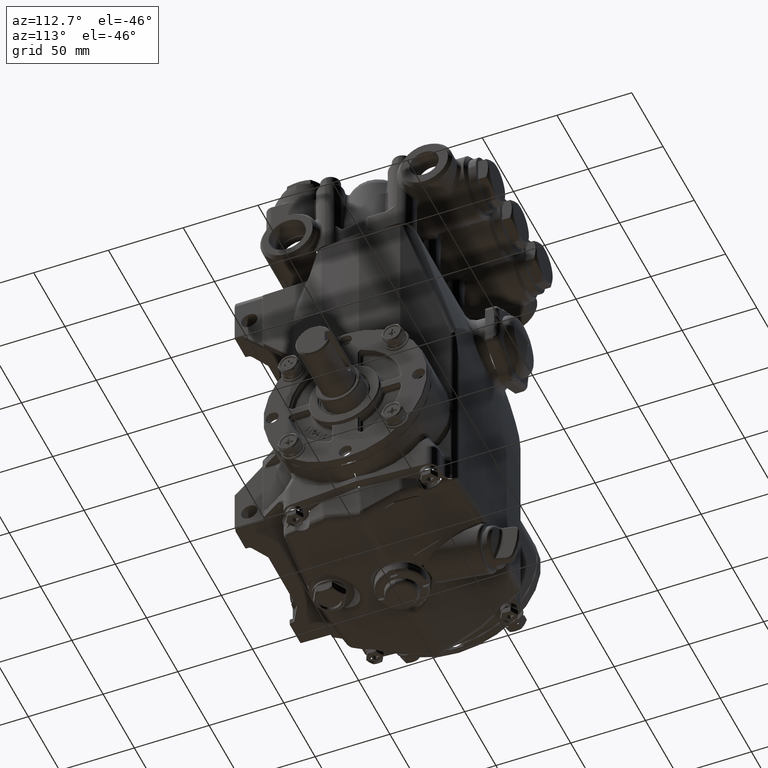
[diagram: clean part render]
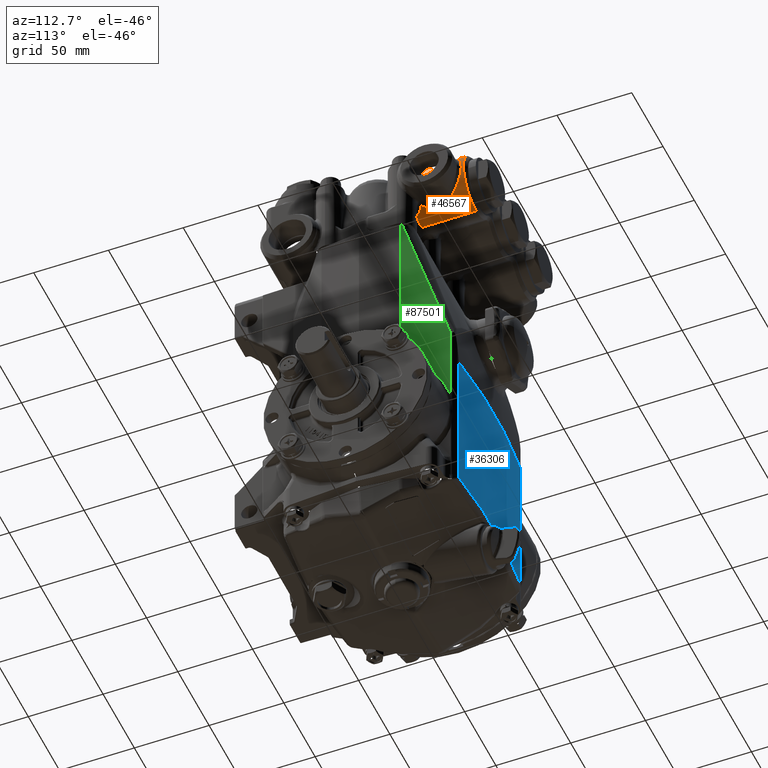
[diagram: same view with three faces highlighted in distinct colors, each labeled with its STEP entity id]
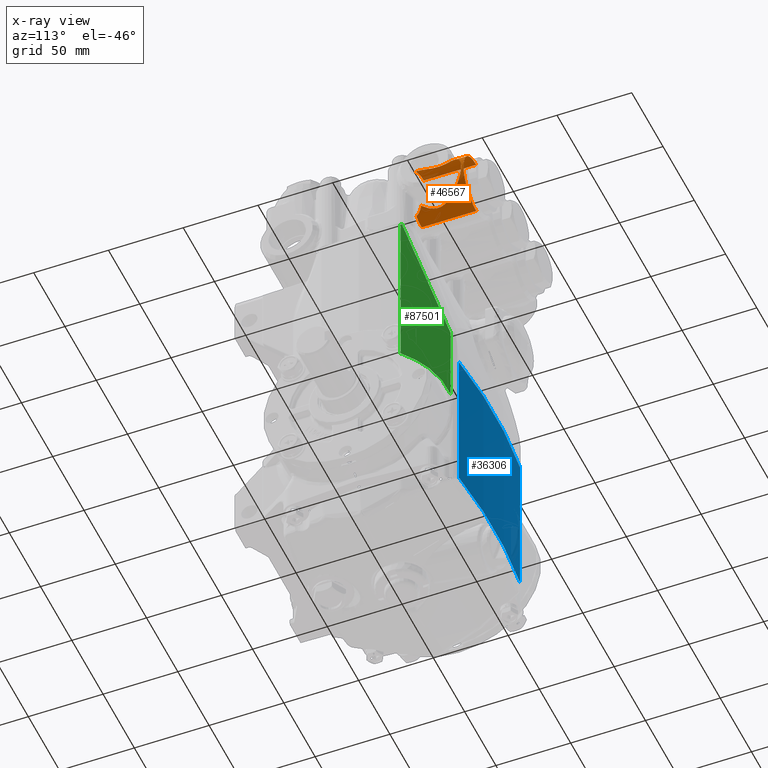
[diagram: x-ray of the same camera — body ghosted, the three highlighted faces saturated]
A machine part, auxiliary view with three faces highlighted in distinct colors.
The next image is the same camera in x-ray (body ghosted, the three faces saturated) — at least one of them is partly hidden behind the body in this view.
Their STEP definitions:

[orange] entity #46567 — the highlighted cylindrical surface (edge-blend (fillet) strip) has radius 20.5 mm, axis along (0, 1, 0).
#430 = LINE ( 'NONE', #87080, #75181 ) ;
#562 = CARTESIAN_POINT ( 'NONE',  ( 1.887898155012650347, 1.875544300023719302, 8.933965430358696835 ) ) ;
#1161 = CARTESIAN_POINT ( 'NONE',  ( 1.978013763466342390, 1.392126297157340264, 8.876062346090446198 ) ) ;
#1795 = CARTESIAN_POINT ( 'NONE',  ( 1.867103497171284765, 1.693745785696658679, 8.945092271815292762 ) ) ;
#1968 = ORIENTED_EDGE ( 'NONE', *, *, #84944, .F. ) ;
#4184 = AXIS2_PLACEMENT_3D ( 'NONE', #39419, #28815, #21886 ) ;
#5304 = B_SPLINE_CURVE_WITH_KNOTS ( 'NONE', 3,
 ( #44717, #71149, #73011, #34064, #15852, #27565, #33424, #111280, #72385, #23389, #110673, #25274, #109421, #63593, #61707, #65908, #54163, #6415, #36991, #83063, #104206, #94788, #8721, #20027, #30056, #67160, #59565, #20646, #96630, #50140, #58334, #10565, #38810, #86598, #37576, #77178, #30674, #76566, #88468, #57704, #115427, #69006, #106051, #19387, #116676, #75943, #114191, #11817, #39417, #104825, #29415, #78416, #67757, #58962, #114815, #124219, #68390, #97866, #38188, #28197, #57089, #107294, #66544, #562, #21252, #96016, #18788, #95395, #28813, #9948, #1795, #47631, #97262, #9328, #105427, #85982, #48889, #48250, #87220, #1161, #77780, #116053, #106682, #11191 ),
 .UNSPECIFIED., .F., .F.,
 ( 4, 2, 2, 2, 2, 2, 2, 2, 2, 2, 2, 2, 2, 2, 2, 2, 2, 2, 2, 2, 2, 2, 2, 2, 2, 2, 2, 2, 2, 2, 2, 2, 2, 2, 2, 2, 2, 2, 2, 2, 2, 4 ),
 ( 0.000000000000000000, 0.002834793119117585535, 0.005669586238235171070, 0.008504379357352756172, 0.009921775916911552626, 0.01133917247647034734, 0.01417396559558793852, 0.01700875871470552969, 0.01842615527426430533, 0.01984355183382308443, 0.02267834495294065306, 0.02551313807205822515, 0.02834793119117579724, 0.03118272431029336586, 0.03401751742941093448, 0.03685231054852850657, 0.03968710366764607866, 0.04110450022720486124, 0.04252189678676364382, 0.04535668990588129917, 0.04677408646544016502, 0.04819148302499902392, 0.05102627614411676255, 0.05244367270367562839, 0.05386106926323448729, 0.05669586238235229531, 0.05953065550147009638, 0.06236544862058791133, 0.06520024173970571935, 0.06803503485882352042, 0.07086982797794132150, 0.07228722453750023591, 0.07370462109705913645, 0.07512201765661805086, 0.07653941421617693752, 0.07795681077573585194, 0.07937420733529475247, 0.08220900045441258130, 0.08362639701397149572, 0.08504379357353042401, 0.08787858669264826672, 0.09071337981176612331 ),
 .UNSPECIFIED. ) ;
#5713 = VERTEX_POINT ( 'NONE', #34797 ) ;
#6415 = CARTESIAN_POINT ( 'NONE',  ( 1.946580572287869737, 2.015109620018512349, 7.558634748197056830 ) ) ;
#7308 = CARTESIAN_POINT ( 'NONE',  ( 1.496062992125984259, 2.578740157480315265, 8.228346456692914757 ) ) ;
#8721 = CARTESIAN_POINT ( 'NONE',  ( 2.052625948890020258, 2.189172874905088495, 7.643279274628634212 ) ) ;
#9114 = CARTESIAN_POINT ( 'NONE',  ( 2.068500768795727751, 1.252643318163350061, 8.797296186123384487 ) ) ;
#9328 = CARTESIAN_POINT ( 'NONE',  ( 1.888062600508001676, 1.585300529257277047, 8.933910416311128699 ) ) ;
#9948 = CARTESIAN_POINT ( 'NONE',  ( 1.865887343444566859, 1.712083311249620321, 8.945715789192282941 ) ) ;
#10565 = CARTESIAN_POINT ( 'NONE',  ( 2.271188948071915181, 2.480032685148207960, 8.000890287102285114 ) ) ;
#11191 = CARTESIAN_POINT ( 'NONE',  ( 2.068500768795727751, 1.252643318163350061, 8.797296186123384487 ) ) ;
#11630 = CARTESIAN_POINT ( 'NONE',  ( 1.496062992125984259, 1.141732283464567121, 7.421259842519686067 ) ) ;
#11658 = DIRECTION ( 'NONE',  ( 0.000000000000000000, 1.000000000000000000, 1.226136909130372365E-16 ) ) ;
#11817 = CARTESIAN_POINT ( 'NONE',  ( 2.232360391256039023, 2.431143250863842198, 8.559298208494208637 ) ) ;
#11991 = CARTESIAN_POINT ( 'NONE',  ( 1.496062992125984259, 2.578740157480315265, 9.035433070866144334 ) ) ;
#12695 = DIRECTION ( 'NONE',  ( 1.734723475976806848E-16, -1.000000000000000000, 0.000000000000000000 ) ) ;
#15207 = AXIS2_PLACEMENT_3D ( 'NONE', #115899, #11658, #89544 ) ;
#15852 = CARTESIAN_POINT ( 'NONE',  ( 1.925763334180687458, 1.490170108105921321, 7.544965645808301424 ) ) ;
#16687 = CARTESIAN_POINT ( 'NONE',  ( 2.042721650677164824, 1.236876626930506040, 8.822356714430453550 ) ) ;
#17821 = EDGE_CURVE ( 'NONE', #26839, #89893, #45031, .T. ) ;
#18144 = CARTESIAN_POINT ( 'NONE',  ( 1.496062992125984259, 2.578740157480315265, 7.421259842519685179 ) ) ;
#18788 = CARTESIAN_POINT ( 'NONE',  ( 1.871172246771924508, 1.804023993902112766, 8.942970780620745685 ) ) ;
#19387 = CARTESIAN_POINT ( 'NONE',  ( 2.278067264560247551, 2.488593599301306636, 8.431117142189735958 ) ) ;
#19604 = CARTESIAN_POINT ( 'NONE',  ( 1.899036451755154786, 1.251834101095549823, 7.528997210686567243 ) ) ;
#20027 = CARTESIAN_POINT ( 'NONE',  ( 2.089157792117524615, 2.241539543078870711, 7.680346009071236324 ) ) ;
#20646 = CARTESIAN_POINT ( 'NONE',  ( 2.192398289781099852, 2.380014358974926303, 7.819178035016432382 ) ) ;
#21252 = CARTESIAN_POINT ( 'NONE',  ( 1.882829194942856610, 1.858019892057932276, 8.936741284189452017 ) ) ;
#21407 = VERTEX_POINT ( 'NONE', #9114 ) ;
#21886 = DIRECTION ( 'NONE',  ( 1.692413147294446759E-15, 1.692413147294446709E-16, -1.000000000000000000 ) ) ;
#22095 = CARTESIAN_POINT ( 'NONE',  ( 1.975371535434770509, 1.317469919524930866, 7.578646343875884206 ) ) ;
#23389 = CARTESIAN_POINT ( 'NONE',  ( 1.866556236994711293, 1.700630843469025599, 7.511318610564629239 ) ) ;
#24123 = ORIENTED_EDGE ( 'NONE', *, *, #17821, .F. ) ;
#25274 = CARTESIAN_POINT ( 'NONE',  ( 1.866315501193171134, 1.775009787304316466, 7.511197822292195347 ) ) ;
#26839 = VERTEX_POINT ( 'NONE', #108765 ) ;
#27168 = CARTESIAN_POINT ( 'NONE',  ( 1.826144953791390080, 1.141732283464567121, 7.491844792498784322 ) ) ;
#27174 = ORIENTED_EDGE ( 'NONE', *, *, #108007, .F. ) ;
#27565 = CARTESIAN_POINT ( 'NONE',  ( 1.897969018274525688, 1.556855671979210598, 7.528258417377337253 ) ) ;
#28197 = CARTESIAN_POINT ( 'NONE',  ( 1.942870821933983416, 2.008683930292773034, 8.900784282390674207 ) ) ;
#28813 = CARTESIAN_POINT ( 'NONE',  ( 1.865735854728270970, 1.748809075138597846, 8.945793865702267311 ) ) ;
#28815 = DIRECTION ( 'NONE',  ( -0.000000000000000000, -1.000000000000000000, -1.226136909130372365E-16 ) ) ;
#29023 = CARTESIAN_POINT ( 'NONE',  ( 1.891141253111256137, 1.242958158626367160, 7.524517640587278677 ) ) ;
#29415 = CARTESIAN_POINT ( 'NONE',  ( 2.188643166959132191, 2.375150789374363747, 8.643837862099477576 ) ) ;
#30056 = CARTESIAN_POINT ( 'NONE',  ( 2.107457990837757311, 2.266895047740565161, 7.700729769979494321 ) ) ;
#30674 = CARTESIAN_POINT ( 'NONE',  ( 2.300464382697895882, 2.516368235315326274, 8.160070253916906324 ) ) ;
#33424 = CARTESIAN_POINT ( 'NONE',  ( 1.886028987106611599, 1.591894250265075916, 7.521663527343367406 ) ) ;
#34064 = CARTESIAN_POINT ( 'NONE',  ( 1.941654918050607304, 1.458222621631502403, 7.555096895385856826 ) ) ;
#34765 = AXIS2_PLACEMENT_3D ( 'NONE', #7308, #102193, #94007 ) ;
#34797 = CARTESIAN_POINT ( 'NONE',  ( 1.992153636708139386, 1.194032563966385796, 8.864964768663019967 ) ) ;
#35638 = CARTESIAN_POINT ( 'NONE',  ( 1.496062992125984259, 1.194032563966385574, 9.035433070866142558 ) ) ;
#36991 = CARTESIAN_POINT ( 'NONE',  ( 1.954914611682161185, 2.030760857187528856, 7.564303627364235005 ) ) ;
#37576 = CARTESIAN_POINT ( 'NONE',  ( 2.293970574041784172, 2.508334987560026708, 8.105599160447125584 ) ) ;
#37914 = EDGE_CURVE ( 'NONE', #77611, #51240, #47665, .T. ) ;
#38188 = CARTESIAN_POINT ( 'NONE',  ( 1.976464350978879292, 2.069803275499331185, 8.877210387435837902 ) ) ;
#38810 = CARTESIAN_POINT ( 'NONE',  ( 2.280372816913603273, 2.491462980562314744, 8.034595720443876488 ) ) ;
#39275 = FACE_OUTER_BOUND ( 'NONE', #57105, .T. ) ;
#39417 = CARTESIAN_POINT ( 'NONE',  ( 2.225536868105773447, 2.422473028202373424, 8.574052003312031545 ) ) ;
#39419 = CARTESIAN_POINT ( 'NONE',  ( 1.496062992125984259, 1.194032563966385796, 8.228346456692914757 ) ) ;
#39907 = CYLINDRICAL_SURFACE ( 'NONE', #15207, 0.8070866141732280230 ) ;
#40898 = CARTESIAN_POINT ( 'NONE',  ( 1.993590859276068938, 1.328601576662053141, 7.592414783456518990 ) ) ;
#41532 = DIRECTION ( 'NONE',  ( -1.000000000000000000, -1.692413147294446216E-16, 2.707861035671113946E-15 ) ) ;
#44717 = CARTESIAN_POINT ( 'NONE',  ( 2.011702383199986954, 1.337813344584549258, 7.607456111180569636 ) ) ;
#44935 = CARTESIAN_POINT ( 'NONE',  ( 2.004365733450574449, 1.205938173841371031, 8.855310483908880315 ) ) ;
#45031 = B_SPLINE_CURVE_WITH_KNOTS ( 'NONE', 3,
 ( #27168, #103779, #46638, #88067, #78018, #29023, #19604, #116895, #59779, #22095, #40898, #96236 ),
 .UNSPECIFIED., .F., .F.,
 ( 4, 2, 2, 2, 2, 4 ),
 ( 3.469446951953614189E-18, 0.001899587382820658744, 0.002849381074230973154, 0.003799174765641295370, 0.005698762148461956716, 0.007598349531282619362 ),
 .UNSPECIFIED. ) ;
#46067 = ORIENTED_EDGE ( 'NONE', *, *, #51975, .T. ) ;
#46567 = ADVANCED_FACE ( 'NONE', ( #39275 ), #39907, .T. ) ;
#46638 = CARTESIAN_POINT ( 'NONE',  ( 1.848695779321354760, 1.185390345343626972, 7.502212946647350833 ) ) ;
#47631 = CARTESIAN_POINT ( 'NONE',  ( 1.871733086313626782, 1.657119980942266979, 8.942676632600921494 ) ) ;
#47665 = LINE ( 'NONE', #56505, #102697 ) ;
#48250 = CARTESIAN_POINT ( 'NONE',  ( 1.944591283962214812, 1.453291368309356901, 8.899390084463805195 ) ) ;
#48729 = EDGE_CURVE ( 'NONE', #5713, #21407, #60111, .T. ) ;
#48751 = DIRECTION ( 'NONE',  ( 0.000000000000000000, 1.000000000000000000, 1.226136909130372365E-16 ) ) ;
#48889 = CARTESIAN_POINT ( 'NONE',  ( 1.928839222851002067, 1.485072342135979273, 8.909655427035216846 ) ) ;
#49069 = ORIENTED_EDGE ( 'NONE', *, *, #83675, .F. ) ;
#50140 = CARTESIAN_POINT ( 'NONE',  ( 2.236279897879295486, 2.436161747874678873, 7.905048790708695705 ) ) ;
#51240 = VERTEX_POINT ( 'NONE', #11991 ) ;
#51975 = EDGE_CURVE ( 'NONE', #83555, #96765, #430, .T. ) ;
#53744 = CARTESIAN_POINT ( 'NONE',  ( 2.023394982290981137, 1.222203729828555963, 8.839397635440180423 ) ) ;
#54163 = CARTESIAN_POINT ( 'NONE',  ( 1.930620280126511101, 1.983229322867433808, 7.548170136922085938 ) ) ;
#56133 = ORIENTED_EDGE ( 'NONE', *, *, #37914, .F. ) ;
#56505 = CARTESIAN_POINT ( 'NONE',  ( 1.496062992125984259, 2.122012141192681334, 9.035433070866142558 ) ) ;
#57089 = CARTESIAN_POINT ( 'NONE',  ( 1.927002598382801635, 1.977020676766997553, 8.910950153212704450 ) ) ;
#57105 = EDGE_LOOP ( 'NONE', ( #116390, #46067, #27174, #56133, #1968, #74958, #49069, #24123 ) ) ;
#57704 = CARTESIAN_POINT ( 'NONE',  ( 2.299520446435202370, 2.515201613795212232, 8.307013565842286340 ) ) ;
#58334 = CARTESIAN_POINT ( 'NONE',  ( 2.249188035721403356, 2.452439964085924906, 7.936183445044738605 ) ) ;
#58962 = CARTESIAN_POINT ( 'NONE',  ( 2.103255296015489773, 2.261096152507442003, 8.760773661880834950 ) ) ;
#59565 = CARTESIAN_POINT ( 'NONE',  ( 2.159857819412818181, 2.337460145787558119, 7.768261604383141616 ) ) ;
#59779 = CARTESIAN_POINT ( 'NONE',  ( 1.940262514577401731, 1.291624903596516827, 7.554155311291859576 ) ) ;
#60111 = B_SPLINE_CURVE_WITH_KNOTS ( 'NONE', 3,
 ( #83882, #93923, #44935, #123339, #53744, #16687, #92073, #121501 ),
 .UNSPECIFIED., .F., .F.,
 ( 4, 2, 2, 4 ),
 ( 0.001883083217654418383, 0.002628282194069290166, 0.003373481170484161733, 0.004863879123313871039 ),
 .UNSPECIFIED. ) ;
#60444 = CARTESIAN_POINT ( 'NONE',  ( 1.496062992125984259, 1.141732283464567121, 8.228346456692914757 ) ) ;
#61707 = CARTESIAN_POINT ( 'NONE',  ( 1.901665203249825797, 1.917579514190301371, 7.530382781261844904 ) ) ;
#62762 = CIRCLE ( 'NONE', #96817, 0.8070866141732282451 ) ;
#63593 = CARTESIAN_POINT ( 'NONE',  ( 1.889364122926431966, 1.883436796548687342, 7.523501502311213507 ) ) ;
#63901 = CARTESIAN_POINT ( 'NONE',  ( 2.011702383199986954, 1.337813344584549258, 7.607456111180569636 ) ) ;
#64928 = CIRCLE ( 'NONE', #34765, 0.8070866141732280230 ) ;
#65908 = CARTESIAN_POINT ( 'NONE',  ( 1.923011392699406130, 1.967040238176573030, 7.543384211891458691 ) ) ;
#66544 = CARTESIAN_POINT ( 'NONE',  ( 1.899459776351528184, 1.910045478455193901, 8.927420104707247006 ) ) ;
#67160 = CARTESIAN_POINT ( 'NONE',  ( 2.142774767679815007, 2.314807666881593562, 7.744665681895913423 ) ) ;
#67757 = CARTESIAN_POINT ( 'NONE',  ( 2.138442359170334317, 2.309006436978939814, 8.717744016476951074 ) ) ;
#68390 = CARTESIAN_POINT ( 'NONE',  ( 2.030551408777599320, 2.156394160108201064, 8.833548789171613791 ) ) ;
#69006 = CARTESIAN_POINT ( 'NONE',  ( 2.292309139692195075, 2.506276840990956156, 8.361429696319511606 ) ) ;
#71149 = CARTESIAN_POINT ( 'NONE',  ( 1.993455880141455028, 1.366545548039145963, 7.592302685468066414 ) ) ;
#72385 = CARTESIAN_POINT ( 'NONE',  ( 1.870669056028473332, 1.663774646557640180, 7.513458721797278805 ) ) ;
#73011 = CARTESIAN_POINT ( 'NONE',  ( 1.975575036190407863, 1.396261868129418771, 7.578819447364956829 ) ) ;
#74958 = ORIENTED_EDGE ( 'NONE', *, *, #48729, .T. ) ;
#75181 = VECTOR ( 'NONE', #48751, 39.37007874015748143 ) ;
#75943 = CARTESIAN_POINT ( 'NONE',  ( 2.251467612513937677, 2.455287914565612351, 8.513032499008662768 ) ) ;
#76566 = CARTESIAN_POINT ( 'NONE',  ( 2.303864808730147207, 2.520569084241767399, 8.214827402127617972 ) ) ;
#77178 = CARTESIAN_POINT ( 'NONE',  ( 2.298712413536127652, 2.514203335159527430, 8.141874991316564447 ) ) ;
#77611 = VERTEX_POINT ( 'NONE', #35638 ) ;
#77780 = CARTESIAN_POINT ( 'NONE',  ( 1.995691275130896836, 1.362916239397439444, 8.862627318002672894 ) ) ;
#78018 = CARTESIAN_POINT ( 'NONE',  ( 1.876149301502142652, 1.224581320596522804, 7.516309777786117863 ) ) ;
#78416 = CARTESIAN_POINT ( 'NONE',  ( 2.155664096647556427, 2.331915902478256530, 8.694422404852176101 ) ) ;
#83063 = CARTESIAN_POINT ( 'NONE',  ( 1.980436430116821578, 2.076558690056343082, 7.582431047335943752 ) ) ;
#83555 = VERTEX_POINT ( 'NONE', #11630 ) ;
#83675 = EDGE_CURVE ( 'NONE', #89893, #21407, #5304, .T. ) ;
#83882 = CARTESIAN_POINT ( 'NONE',  ( 1.992153636708139386, 1.194032563966385796, 8.864964768663019967 ) ) ;
#84944 = EDGE_CURVE ( 'NONE', #5713, #77611, #100410, .T. ) ;
#85982 = CARTESIAN_POINT ( 'NONE',  ( 1.921252475240743385, 1.501395475296247728, 8.914400910514398646 ) ) ;
#86598 = CARTESIAN_POINT ( 'NONE',  ( 2.290963090683294290, 2.504609614521444705, 8.087471520452856666 ) ) ;
#87080 = CARTESIAN_POINT ( 'NONE',  ( 1.496062992125984259, 2.122012141192681334, 7.421259842519686067 ) ) ;
#87220 = CARTESIAN_POINT ( 'NONE',  ( 1.952783407061400744, 1.437769320162032738, 8.893854660630195141 ) ) ;
#88065 = EDGE_CURVE ( 'NONE', #83555, #26839, #62762, .T. ) ;
#88067 = CARTESIAN_POINT ( 'NONE',  ( 1.869010321210870185, 1.215041557017327190, 7.512555404034583439 ) ) ;
#88468 = CARTESIAN_POINT ( 'NONE',  ( 2.303667052567496043, 2.520325467435846178, 8.251559664429917618 ) ) ;
#89544 = DIRECTION ( 'NONE',  ( 0.000000000000000000, 0.000000000000000000, 1.000000000000000000 ) ) ;
#89893 = VERTEX_POINT ( 'NONE', #63901 ) ;
#92073 = CARTESIAN_POINT ( 'NONE',  ( 2.055657903579016121, 1.245315803201530569, 8.810217786803445250 ) ) ;
#93923 = CARTESIAN_POINT ( 'NONE',  ( 1.998189553576402044, 1.200136075586912376, 8.860261225215525727 ) ) ;
#94007 = DIRECTION ( 'NONE',  ( 0.000000000000000000, 0.000000000000000000, 1.000000000000000000 ) ) ;
#94788 = CARTESIAN_POINT ( 'NONE',  ( 2.034310146890665028, 2.162061234628054329, 7.626486160094785305 ) ) ;
#95395 = CARTESIAN_POINT ( 'NONE',  ( 1.866800709452694385, 1.767197316859828726, 8.945248418066796603 ) ) ;
#96016 = CARTESIAN_POINT ( 'NONE',  ( 1.874471437372929428, 1.822315692528777564, 8.941240821820747087 ) ) ;
#96236 = CARTESIAN_POINT ( 'NONE',  ( 2.011702383199986954, 1.337813344584549258, 7.607456111180569636 ) ) ;
#96630 = CARTESIAN_POINT ( 'NONE',  ( 2.207925934379696198, 2.400001168305988308, 7.846648146715341277 ) ) ;
#96765 = VERTEX_POINT ( 'NONE', #18144 ) ;
#96817 = AXIS2_PLACEMENT_3D ( 'NONE', #60444, #12695, #41532 ) ;
#97262 = CARTESIAN_POINT ( 'NONE',  ( 1.875170952667116975, 1.638784454233742638, 8.940870003572943148 ) ) ;
#97866 = CARTESIAN_POINT ( 'NONE',  ( 1.994209461621081925, 2.099246942037803265, 8.863797340476999409 ) ) ;
#100410 = CIRCLE ( 'NONE', #4184, 0.8070866141732280230 ) ;
#102193 = DIRECTION ( 'NONE',  ( 0.000000000000000000, 1.000000000000000000, 0.000000000000000000 ) ) ;
#102697 = VECTOR ( 'NONE', #103602, 39.37007874015748143 ) ;
#103602 = DIRECTION ( 'NONE',  ( 0.000000000000000000, 1.000000000000000000, 1.226136909130372365E-16 ) ) ;
#103779 = CARTESIAN_POINT ( 'NONE',  ( 1.836616284494563711, 1.164253722913974887, 7.496537785804552101 ) ) ;
#104206 = CARTESIAN_POINT ( 'NONE',  ( 1.998220825610993456, 2.105750592652837039, 7.596062243302209360 ) ) ;
#104825 = CARTESIAN_POINT ( 'NONE',  ( 2.204139887737943670, 2.395135697428644850, 8.616983233604848635 ) ) ;
#105427 = CARTESIAN_POINT ( 'NONE',  ( 1.900091585337363664, 1.551131069618393088, 8.927218210431428602 ) ) ;
#106051 = CARTESIAN_POINT ( 'NONE',  ( 2.289146362495176668, 2.502356707695224447, 8.379084733111413996 ) ) ;
#106682 = CARTESIAN_POINT ( 'NONE',  ( 2.050165300212332120, 1.279004330649295751, 8.815744063549361798 ) ) ;
#107294 = CARTESIAN_POINT ( 'NONE',  ( 1.905978766668111835, 1.927083115203278796, 8.923634057294671962 ) ) ;
#108007 = EDGE_CURVE ( 'NONE', #51240, #96765, #64928, .T. ) ;
#108765 = CARTESIAN_POINT ( 'NONE',  ( 1.826144953791390080, 1.141732283464567121, 7.491844792498784322 ) ) ;
#109421 = CARTESIAN_POINT ( 'NONE',  ( 1.871482430815467835, 1.811582376636142744, 7.513816937176520661 ) ) ;
#110673 = CARTESIAN_POINT ( 'NONE',  ( 1.865608078742863274, 1.719424008118643821, 7.510833180081347038 ) ) ;
#111280 = CARTESIAN_POINT ( 'NONE',  ( 1.873813858903410123, 1.645623546793339553, 7.515104250495799221 ) ) ;
#114191 = CARTESIAN_POINT ( 'NONE',  ( 2.245313503619055240, 2.447535343696945809, 8.528823732062280172 ) ) ;
#114815 = CARTESIAN_POINT ( 'NONE',  ( 2.085248043445899757, 2.236046287665405252, 8.780533892050733868 ) ) ;
#115427 = CARTESIAN_POINT ( 'NONE',  ( 2.297492426088898920, 2.512694653928721600, 8.325454327442002977 ) ) ;
#115899 = CARTESIAN_POINT ( 'NONE',  ( 1.496062992125984259, 2.122012141192681334, 8.228346456692914757 ) ) ;
#116053 = CARTESIAN_POINT ( 'NONE',  ( 2.031736947153120809, 1.306387814476689169, 8.832493827876362502 ) ) ;
#116390 = ORIENTED_EDGE ( 'NONE', *, *, #88065, .F. ) ;
#116676 = CARTESIAN_POINT ( 'NONE',  ( 2.268567165823604181, 2.476759657830224448, 8.464566748070337709 ) ) ;
#116895 = CARTESIAN_POINT ( 'NONE',  ( 1.923279436321529090, 1.276887045989923974, 7.543344551807456000 ) ) ;
#121501 = CARTESIAN_POINT ( 'NONE',  ( 2.068500768795727751, 1.252643318163350061, 8.797296186123384487 ) ) ;
#123339 = CARTESIAN_POINT ( 'NONE',  ( 2.016955120226864739, 1.216962699132242864, 8.844890825853388705 ) ) ;
#124219 = CARTESIAN_POINT ( 'NONE',  ( 2.048903797900544443, 2.183700243193920087, 8.816918484516556020 ) ) ;

[blue] entity #36306 — the highlighted cylindrical surface (partial cylindrical patch) has radius 400 mm, axis along (-0, -0, -1).
#1156 = EDGE_CURVE ( 'NONE', #92263, #48904, #23998, .T. ) ;
#2754 = EDGE_LOOP ( 'NONE', ( #22969, #102909, #114560, #102409 ) ) ;
#6661 = CYLINDRICAL_SURFACE ( 'NONE', #104481, 15.74803149606299080 ) ;
#11604 = VECTOR ( 'NONE', #117709, 39.37007874015748143 ) ;
#20041 = EDGE_CURVE ( 'NONE', #92263, #103842, #29810, .T. ) ;
#22969 = ORIENTED_EDGE ( 'NONE', *, *, #25576, .F. ) ;
#23361 = DIRECTION ( 'NONE',  ( -0.000000000000000000, 0.000000000000000000, 1.000000000000000000 ) ) ;
#23998 = LINE ( 'NONE', #71716, #103066 ) ;
#25576 = EDGE_CURVE ( 'NONE', #48904, #110258, #29578, .T. ) ;
#25792 = AXIS2_PLACEMENT_3D ( 'NONE', #97159, #57605, #59462 ) ;
#29578 = CIRCLE ( 'NONE', #99788, 15.74803149606299257 ) ;
#29810 = CIRCLE ( 'NONE', #25792, 15.74803149606299080 ) ;
#36306 = ADVANCED_FACE ( 'NONE', ( #70789 ), #6661, .T. ) ;
#36448 = DIRECTION ( 'NONE',  ( 1.000000000000000000, 0.000000000000000000, 0.000000000000000000 ) ) ;
#44620 = CARTESIAN_POINT ( 'NONE',  ( 1.927892502559933607, 2.302806923614975521, -2.204724409448818978 ) ) ;
#48904 = VERTEX_POINT ( 'NONE', #97008 ) ;
#57601 = CARTESIAN_POINT ( 'NONE',  ( -1.927892502559933607, 2.302806923614975521, -2.204724409448818978 ) ) ;
#57605 = DIRECTION ( 'NONE',  ( 0.000000000000000000, 0.000000000000000000, 1.000000000000000000 ) ) ;
#59462 = DIRECTION ( 'NONE',  ( 1.000000000000000000, 0.000000000000000000, 0.000000000000000000 ) ) ;
#63070 = EDGE_CURVE ( 'NONE', #103842, #110258, #118332, .T. ) ;
#64453 = CARTESIAN_POINT ( 'NONE',  ( 0.000000000000000000, -13.32677165354330917, 6.535433070866142558 ) ) ;
#70789 = FACE_OUTER_BOUND ( 'NONE', #2754, .T. ) ;
#71716 = CARTESIAN_POINT ( 'NONE',  ( 1.927892502559932941, 2.302806923614977741, 6.535433070866142558 ) ) ;
#85095 = CARTESIAN_POINT ( 'NONE',  ( -1.927892502559934051, 2.302806923614977741, 1.830708661417320915 ) ) ;
#91471 = DIRECTION ( 'NONE',  ( -1.000000000000000000, 0.000000000000000000, 0.000000000000000000 ) ) ;
#92263 = VERTEX_POINT ( 'NONE', #44620 ) ;
#97008 = CARTESIAN_POINT ( 'NONE',  ( 1.927892502559934051, 2.302806923614977741, 1.830708661417320915 ) ) ;
#97159 = CARTESIAN_POINT ( 'NONE',  ( 0.000000000000000000, -13.32677165354330917, -2.204724409448818978 ) ) ;
#98938 = CARTESIAN_POINT ( 'NONE',  ( -1.927892502559932941, 2.302806923614977741, 6.535433070866142558 ) ) ;
#99788 = AXIS2_PLACEMENT_3D ( 'NONE', #112437, #103643, #36448 ) ;
#102409 = ORIENTED_EDGE ( 'NONE', *, *, #63070, .T. ) ;
#102764 = DIRECTION ( 'NONE',  ( -0.000000000000000000, -0.000000000000000000, -1.000000000000000000 ) ) ;
#102909 = ORIENTED_EDGE ( 'NONE', *, *, #1156, .F. ) ;
#103066 = VECTOR ( 'NONE', #23361, 39.37007874015748143 ) ;
#103643 = DIRECTION ( 'NONE',  ( -0.000000000000000000, -0.000000000000000000, 1.000000000000000000 ) ) ;
#103842 = VERTEX_POINT ( 'NONE', #57601 ) ;
#104481 = AXIS2_PLACEMENT_3D ( 'NONE', #64453, #102764, #91471 ) ;
#110258 = VERTEX_POINT ( 'NONE', #85095 ) ;
#112437 = CARTESIAN_POINT ( 'NONE',  ( 0.000000000000000000, -13.32677165354330917, 1.830708661417320915 ) ) ;
#114560 = ORIENTED_EDGE ( 'NONE', *, *, #20041, .T. ) ;
#117709 = DIRECTION ( 'NONE',  ( 0.000000000000000000, 0.000000000000000000, 1.000000000000000000 ) ) ;
#118332 = LINE ( 'NONE', #98938, #11604 ) ;

[green] entity #87501 — the highlighted planar face has unit normal (-0.9199, -0.3922, 0).
#7943 = CARTESIAN_POINT ( 'NONE',  ( 2.578741269179713580, 1.076203223235405515, 6.515748031496061188 ) ) ;
#14031 = PLANE ( 'NONE',  #20525 ) ;
#18622 = CARTESIAN_POINT ( 'NONE',  ( 2.274451880622001987, 1.789964013526333275, 4.044763416982778637 ) ) ;
#20445 = CARTESIAN_POINT ( 'NONE',  ( 2.116271851958289929, 2.161001277764797557, 6.535433070866142558 ) ) ;
#20525 = AXIS2_PLACEMENT_3D ( 'NONE', #99463, #24722, #24081 ) ;
#21611 = VECTOR ( 'NONE', #69324, 39.37007874015748143 ) ;
#22248 = VERTEX_POINT ( 'NONE', #113984 ) ;
#24081 = DIRECTION ( 'NONE',  ( -0.3921676722171297813, 0.9198937530322716105, 0.000000000000000000 ) ) ;
#24249 = VECTOR ( 'NONE', #58762, 39.37007874015748143 ) ;
#24722 = DIRECTION ( 'NONE',  ( -0.9198937530322716105, -0.3921676722171297813, 0.000000000000000000 ) ) ;
#25173 = LINE ( 'NONE', #82339, #121959 ) ;
#25557 = CARTESIAN_POINT ( 'NONE',  ( 2.565113688565864081, 1.108168954129927108, 6.399072438638245153 ) ) ;
#26801 = CARTESIAN_POINT ( 'NONE',  ( 2.419380578230820422, 1.450009924981134679, 5.200656286739674172 ) ) ;
#28618 = LINE ( 'NONE', #20445, #24249 ) ;
#31585 = LINE ( 'NONE', #39123, #21611 ) ;
#39123 = CARTESIAN_POINT ( 'NONE',  ( 2.581040279659306158, 1.070810516166061710, 6.515748031496061188 ) ) ;
#41787 = ORIENTED_EDGE ( 'NONE', *, *, #77273, .F. ) ;
#45011 = CARTESIAN_POINT ( 'NONE',  ( 2.490782990709670131, 1.282523826957326474, 5.779363762767575352 ) ) ;
#49361 = CARTESIAN_POINT ( 'NONE',  ( 2.116271851958289929, 2.161001277764797557, 0.5847628129192260493 ) ) ;
#52939 = B_SPLINE_CURVE_WITH_KNOTS ( 'NONE', 3,
 ( #7943, #25557, #64504, #63891, #45011, #26801, #122209, #18622, #65135, #56923, #102812, #55066 ),
 .UNSPECIFIED., .F., .F.,
 ( 4, 2, 2, 2, 2, 4 ),
 ( 0.004637689603018759453, 0.08750035464542320340, 0.2250003084241771756, 0.5000002159816850922, 0.7750001235391930088, 0.9011339633073934818 ),
 .UNSPECIFIED. ) ;
#55066 = CARTESIAN_POINT ( 'NONE',  ( 2.116276716150627291, 2.160989868001935932, 2.740471938754866610 ) ) ;
#56769 = VERTEX_POINT ( 'NONE', #83707 ) ;
#56923 = CARTESIAN_POINT ( 'NONE',  ( 2.158462329565132620, 2.062036575833714913, 3.095446433345371506 ) ) ;
#57782 = CARTESIAN_POINT ( 'NONE',  ( 2.591187704889624133, 1.047008061909804555, 2.004706045346183796 ) ) ;
#58762 = DIRECTION ( 'NONE',  ( 0.000000000000000000, 0.000000000000000000, -1.000000000000000000 ) ) ;
#60056 = CARTESIAN_POINT ( 'NONE',  ( 2.353107385071129265, 1.605464595777666315, 1.700134882927487379 ) ) ;
#63891 = CARTESIAN_POINT ( 'NONE',  ( 2.514342318431109558, 1.227261550303916593, 5.972439309888373238 ) ) ;
#64318 = EDGE_CURVE ( 'NONE', #56769, #113644, #52939, .T. ) ;
#64504 = CARTESIAN_POINT ( 'NONE',  ( 2.551398232829876545, 1.140340810571316865, 6.282371958445046367 ) ) ;
#65135 = CARTESIAN_POINT ( 'NONE',  ( 2.226615536731508804, 1.902172023085083374, 3.659126657212345091 ) ) ;
#69324 = DIRECTION ( 'NONE',  ( -0.3921676722171297813, 0.9198937530322716105, 0.000000000000000000 ) ) ;
#70099 = CARTESIAN_POINT ( 'NONE',  ( 2.185718700708097373, 1.998102275990608190, 1.199662161119808612 ) ) ;
#71202 = FACE_OUTER_BOUND ( 'NONE', #94937, .T. ) ;
#71650 = DIRECTION ( 'NONE',  ( -0.000000000000000000, -0.000000000000000000, 1.000000000000000000 ) ) ;
#74918 = ORIENTED_EDGE ( 'NONE', *, *, #118130, .F. ) ;
#77273 = EDGE_CURVE ( 'NONE', #22248, #56769, #31585, .T. ) ;
#78060 = EDGE_CURVE ( 'NONE', #116368, #22248, #25173, .T. ) ;
#81866 = CARTESIAN_POINT ( 'NONE',  ( 2.116271851958289929, 2.161001277764797557, 0.5847628129192260493 ) ) ;
#82339 = CARTESIAN_POINT ( 'NONE',  ( 2.591187704889624133, 1.047008061909804555, 6.535433070866142558 ) ) ;
#82684 = CARTESIAN_POINT ( 'NONE',  ( 2.116276716150627291, 2.160989868001935932, 2.740471938754866610 ) ) ;
#83707 = CARTESIAN_POINT ( 'NONE',  ( 2.578741269179713580, 1.076203223235405515, 6.515748031496061188 ) ) ;
#87501 = ADVANCED_FACE ( 'NONE', ( #71202 ), #14031, .F. ) ;
#90955 = EDGE_CURVE ( 'NONE', #111225, #116368, #95297, .T. ) ;
#94937 = EDGE_LOOP ( 'NONE', ( #74918, #118326, #41787, #98129, #104582 ) ) ;
#95297 =( BOUNDED_CURVE ( )  B_SPLINE_CURVE ( 3, ( #49361, #70099, #60056, #108376 ),
 .UNSPECIFIED., .F., .F. ) 
 B_SPLINE_CURVE_WITH_KNOTS ( ( 4, 4 ),
 ( 3.400563429013379935, 4.213099522305363109 ),
 .UNSPECIFIED. ) 
 CURVE ( )  GEOMETRIC_REPRESENTATION_ITEM ( )  RATIONAL_B_SPLINE_CURVE ( ( 1.000000000000000000, 0.9457346828002768380, 0.9457346828002768380, 1.000000000000000000 ) ) 
 REPRESENTATION_ITEM ( '' )  );
#98129 = ORIENTED_EDGE ( 'NONE', *, *, #78060, .F. ) ;
#99463 = CARTESIAN_POINT ( 'NONE',  ( 2.063185722337698369, 2.285523522891637072, 6.535433070866142558 ) ) ;
#102812 = CARTESIAN_POINT ( 'NONE',  ( 2.137346422861023054, 2.111567406758417587, 2.917975607118220793 ) ) ;
#104582 = ORIENTED_EDGE ( 'NONE', *, *, #90955, .F. ) ;
#108376 = CARTESIAN_POINT ( 'NONE',  ( 2.591187704889624133, 1.047008061909804555, 2.004706045346183796 ) ) ;
#111225 = VERTEX_POINT ( 'NONE', #81866 ) ;
#113644 = VERTEX_POINT ( 'NONE', #82684 ) ;
#113984 = CARTESIAN_POINT ( 'NONE',  ( 2.591187704889624133, 1.047008061909804555, 6.515748031496061188 ) ) ;
#116368 = VERTEX_POINT ( 'NONE', #57782 ) ;
#118130 = EDGE_CURVE ( 'NONE', #113644, #111225, #28618, .T. ) ;
#118326 = ORIENTED_EDGE ( 'NONE', *, *, #64318, .F. ) ;
#121959 = VECTOR ( 'NONE', #71650, 39.37007874015748143 ) ;
#122209 = CARTESIAN_POINT ( 'NONE',  ( 2.370840981384998880, 1.563867529971241233, 4.815523516165016282 ) ) ;